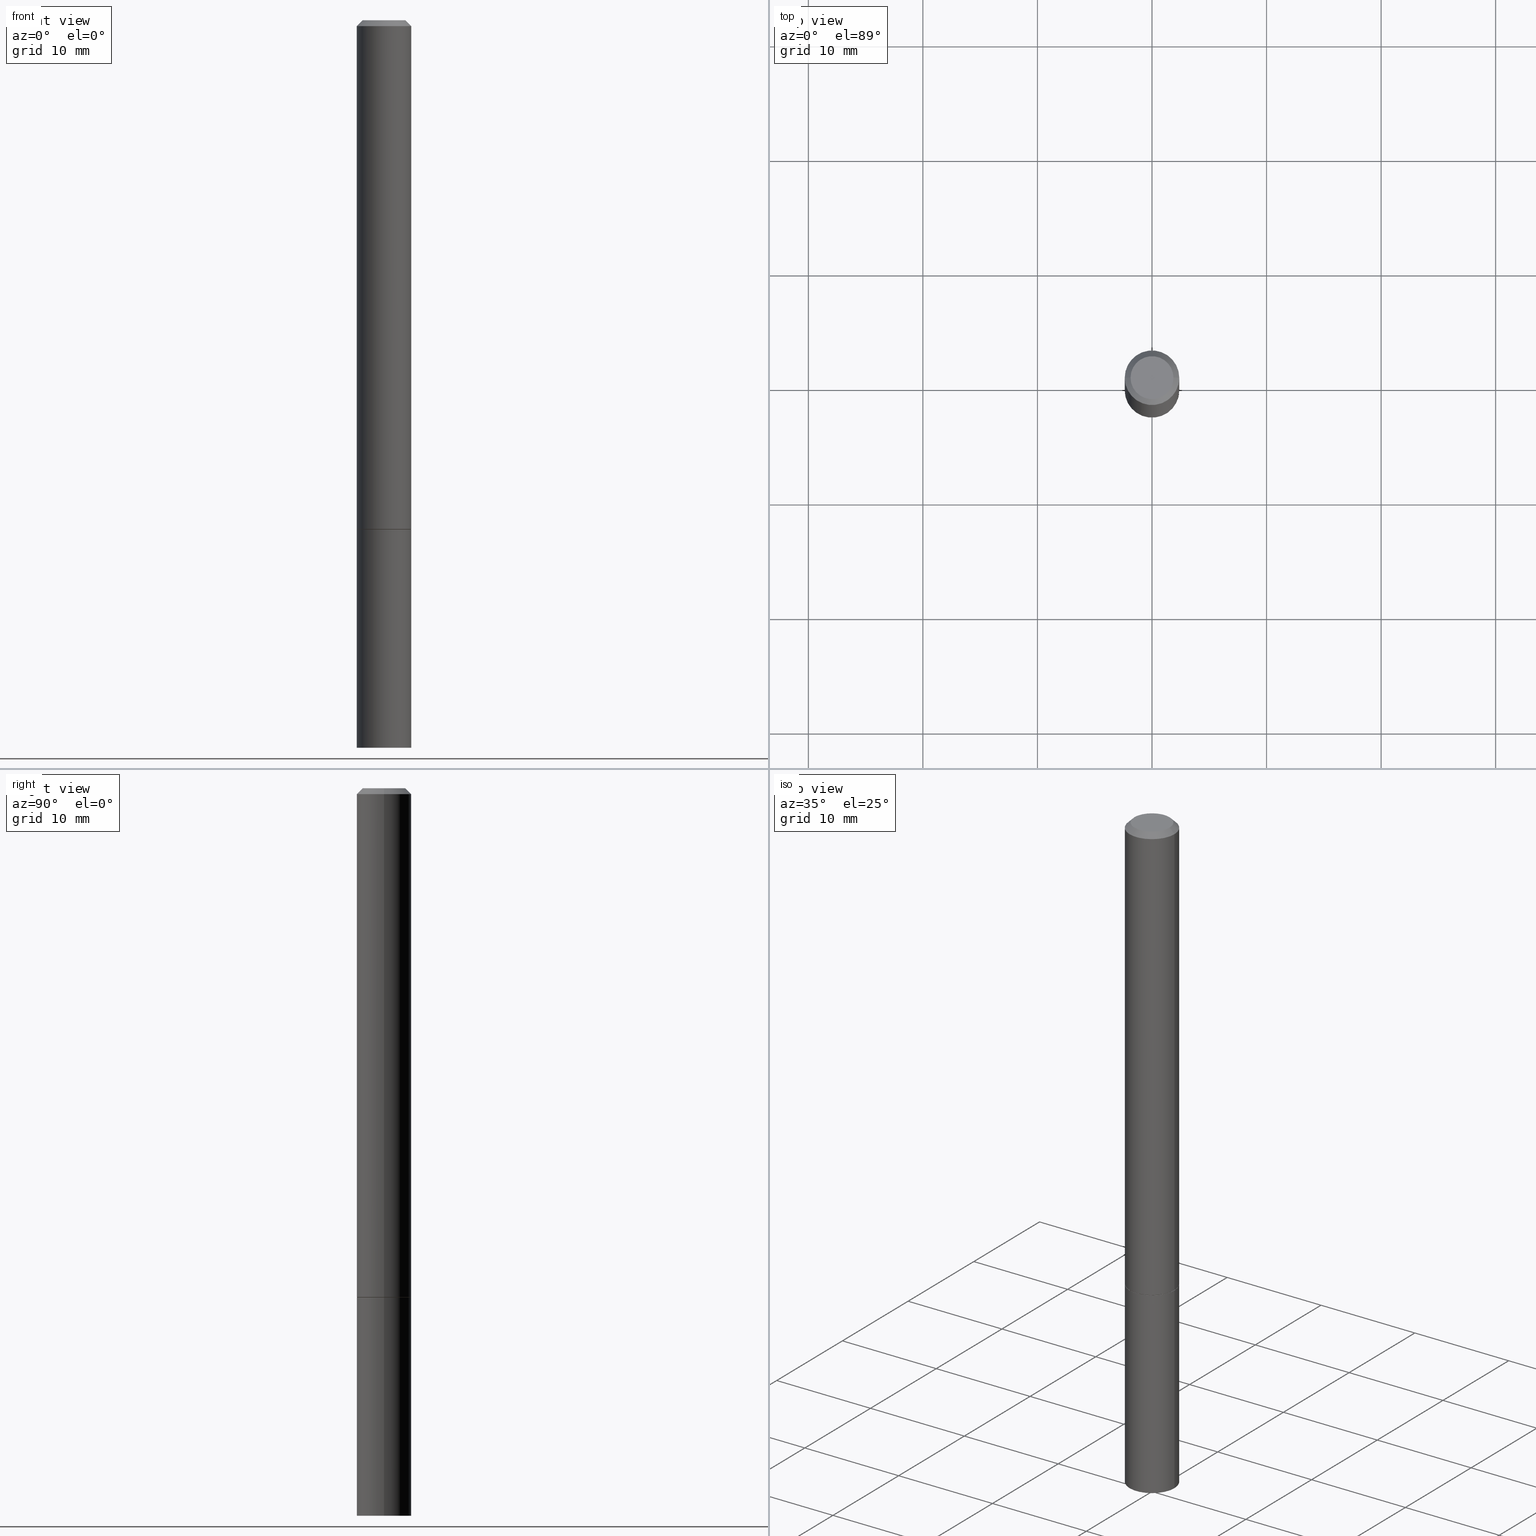
[diagram: canonical four-view strip — front | top / right | iso, engineering-drawing reading convention]
A machine part, canonical four-view strip (front | top / right | iso — engineering-drawing reading convention). The complete STEP part file that produces these views, byte-faithful:
ISO-10303-21;
HEADER;
FILE_DESCRIPTION (( 'STEP AP203' ),
    '1' );
FILE_NAME ('31728.STEP',
    '2023-03-21T20:27:09',
    ( '' ),
    ( '' ),
    'SwSTEP 2.0',
    'SolidWorks 2022',
    '' );
FILE_SCHEMA (( 'CONFIG_CONTROL_DESIGN' ));
ENDSEC;

DATA;
#1 = EDGE_LOOP ( 'NONE', ( #213, #388, #95, #124 ) ) ;
#2 = DIRECTION ( 'NONE',  ( 1.000000000000000000, -6.982962677686261189E-15, 0.000000000000000000 ) ) ;
#3 = CALENDAR_DATE ( 2023, 21, 3 ) ;
#4 = DIRECTION ( 'NONE',  ( 1.000000000000000000, -6.982962677686266711E-15, 0.000000000000000000 ) ) ;
#5 = VECTOR ( 'NONE', #46, 39.37007874015748143 ) ;
#6 = LOCAL_TIME ( 16, 27, 9.000000000000000000, #250 ) ;
#7 = DIRECTION ( 'NONE',  ( 1.000000000000000000, -6.982962677686272233E-15, 0.000000000000000000 ) ) ;
#8 = EDGE_CURVE ( 'NONE', #209, #185, #240, .T. ) ;
#9 = DIRECTION ( 'NONE',  ( -2.445468806185136597E-29, 3.491481338843145583E-15, 1.000000000000000000 ) ) ;
#10 = CARTESIAN_POINT ( 'NONE',  ( 6.100804371105012704E-29, -8.712769720525644670E-15, -2.495086770692215516 ) ) ;
#11 = AXIS2_PLACEMENT_3D ( 'NONE', #199, #321, #79 ) ;
#12 = DIRECTION ( 'NONE',  ( 1.000000000000000000, -6.982962677686261189E-15, 0.000000000000000000 ) ) ;
#13 = LINE ( 'NONE', #257, #137 ) ;
#14 = PRODUCT_RELATED_PRODUCT_CATEGORY ( 'detail', '', ( #42 ) ) ;
#15 = DIRECTION ( 'NONE',  ( 1.000000000000000000, -6.982962677686265922E-15, 4.876176775795935793E-29 ) ) ;
#16 = DIRECTION ( 'NONE',  ( 0.9986295347545742773, -7.033825938272001856E-15, -0.05233595624293820026 ) ) ;
#17 = AXIS2_PLACEMENT_3D ( 'NONE', #337, #306, #37 ) ;
#18 = EDGE_CURVE ( 'NONE', #21, #268, #172, .T. ) ;
#19 = CARTESIAN_POINT ( 'NONE',  ( 0.000000000000000000, 0.000000000000000000, 0.000000000000000000 ) ) ;
#20 = CARTESIAN_POINT ( 'NONE',  ( 0.000000000000000000, 0.000000000000000000, 0.000000000000000000 ) ) ;
#21 = VERTEX_POINT ( 'NONE', #247 ) ;
#22 = DIRECTION ( 'NONE',  ( 2.445468806185136597E-29, -3.491481338843145583E-15, -1.000000000000000000 ) ) ;
#23 = VECTOR ( 'NONE', #262, 39.37007874015748143 ) ;
#24 = EDGE_LOOP ( 'NONE', ( #58, #183 ) ) ;
#25 = APPROVAL_STATUS ( 'not_yet_approved' ) ;
#26 = ADVANCED_FACE ( 'NONE', ( #335 ), #375, .F. ) ;
#27 = ORIENTED_EDGE ( 'NONE', *, *, #230, .F. ) ;
#28 = CC_DESIGN_DATE_AND_TIME_ASSIGNMENT ( #57, #68, ( #355 ) ) ;
#29 = DIRECTION ( 'NONE',  ( -0.9986295347545742773, 6.790662755453662155E-15, -0.05233595624293820026 ) ) ;
#30 = ORIENTED_EDGE ( 'NONE', *, *, #311, .F. ) ;
#31 = VERTEX_POINT ( 'NONE', #155 ) ;
#32 = CIRCLE ( 'NONE', #226, 0.09274999999999999911 ) ;
#33 = ORIENTED_EDGE ( 'NONE', *, *, #372, .F. ) ;
#34 = ADVANCED_BREP_SHAPE_REPRESENTATION ( '31728', ( #368, #243, #320 ), #281 ) ;
#35 = APPROVAL_STATUS ( 'not_yet_approved' ) ;
#36 = DIRECTION ( 'NONE',  ( -1.000000000000000000, 6.982962677686266711E-15, 0.000000000000000000 ) ) ;
#37 = DIRECTION ( 'NONE',  ( 1.000000000000000000, -6.982962677686265133E-15, 4.876176775795935793E-29 ) ) ;
#38 = CC_DESIGN_PERSON_AND_ORGANIZATION_ASSIGNMENT ( #307, #129, ( #314 ) ) ;
#39 = CIRCLE ( 'NONE', #70, 0.09375000000000001388 ) ;
#40 = DIRECTION ( 'NONE',  ( -2.445468806185136597E-29, 3.491481338843145583E-15, 1.000000000000000000 ) ) ;
#41 = DIRECTION ( 'NONE',  ( -2.445468806185136597E-29, 3.491481338843145583E-15, 1.000000000000000000 ) ) ;
#42 = PRODUCT ( '31728', '31728', '', ( #179 ) ) ;
#43 = CARTESIAN_POINT ( 'NONE',  ( -0.09374999999999979183, 5.848231242562231212E-16, -0.02000000000000002123 ) ) ;
#44 = LINE ( 'NONE', #171, #80 ) ;
#45 = EDGE_CURVE ( 'NONE', #390, #141, #133, .T. ) ;
#46 = DIRECTION ( 'NONE',  ( -2.445468806185136877E-29, 3.491481338843145188E-15, 1.000000000000000000 ) ) ;
#47 = LINE ( 'NONE', #381, #5 ) ;
#48 = AXIS2_PLACEMENT_3D ( 'NONE', #162, #157, #4 ) ;
#49 = CARTESIAN_POINT ( 'NONE',  ( -0.09274999999999999911, -5.451063955558012544E-15, -1.750000000000000222 ) ) ;
#50 = APPROVAL_ROLE ( '' ) ;
#51 = EDGE_LOOP ( 'NONE', ( #332, #270, #366, #147 ) ) ;
#52 = ORIENTED_EDGE ( 'NONE', *, *, #344, .T. ) ;
#53 = VECTOR ( 'NONE', #202, 39.37007874015748143 ) ;
#54 = EDGE_CURVE ( 'NONE', #141, #390, #113, .T. ) ;
#55 = ORIENTED_EDGE ( 'NONE', *, *, #163, .F. ) ;
#56 = LOCAL_TIME ( 16, 27, 9.000000000000000000, #309 ) ;
#57 = DATE_AND_TIME ( #331, #231 ) ;
#58 = ORIENTED_EDGE ( 'NONE', *, *, #163, .T. ) ;
#59 = LINE ( 'NONE', #91, #23 ) ;
#60 = ORIENTED_EDGE ( 'NONE', *, *, #18, .F. ) ;
#61 = PERSON_AND_ORGANIZATION_ROLE ( 'classification_officer' ) ;
#62 = CARTESIAN_POINT ( 'NONE',  ( 4.279570410823989044E-29, -6.110092342975505460E-15, -1.750000000000000222 ) ) ;
#63 = CIRCLE ( 'NONE', #280, 0.07374999999999982958 ) ;
#64 = PERSON_AND_ORGANIZATION ( #184, #304 ) ;
#65 = DIRECTION ( 'NONE',  ( -2.445468806185136597E-29, 3.491481338843145583E-15, 1.000000000000000000 ) ) ;
#66 = PERSON_AND_ORGANIZATION_ROLE ( 'creator' ) ;
#67 = ORIENTED_EDGE ( 'NONE', *, *, #45, .T. ) ;
#68 = DATE_TIME_ROLE ( 'creation_date' ) ;
#69 = DIRECTION ( 'NONE',  ( 1.000000000000000000, -6.982962677686266711E-15, 4.876176775795935793E-29 ) ) ;
#70 = AXIS2_PLACEMENT_3D ( 'NONE', #271, #188, #7 ) ;
#71 = AXIS2_PLACEMENT_3D ( 'NONE', #308, #65, #274 ) ;
#72 = CARTESIAN_POINT ( 'NONE',  ( -0.09375000000000001388, -6.753264030266591277E-15, -1.750000000000000222 ) ) ;
#73 = CARTESIAN_POINT ( 'NONE',  ( 5.149934974793609077E-16, 0.07374999999999982958, -2.574967487396813906E-16 ) ) ;
#74 = LINE ( 'NONE', #49, #122 ) ;
#75 = VECTOR ( 'NONE', #29, 39.37007874015748854 ) ;
#76 = CARTESIAN_POINT ( 'NONE',  ( -0.09274999999999999911, -5.445765501209790142E-15, -1.750000000000000222 ) ) ;
#77 = DIRECTION ( 'NONE',  ( 0.7071067811865464625, -7.319954787623252890E-15, -0.7071067811865486830 ) ) ;
#78 = CC_DESIGN_PERSON_AND_ORGANIZATION_ASSIGNMENT ( #151, #296, ( #42 ) ) ;
#79 = DIRECTION ( 'NONE',  ( 1.000000000000000000, -6.982962677686261189E-15, 0.000000000000000000 ) ) ;
#80 = VECTOR ( 'NONE', #16, 39.37007874015748854 ) ;
#81 = COORDINATED_UNIVERSAL_TIME_OFFSET ( 5, 0, .BEHIND. ) ;
#82 = LINE ( 'NONE', #182, #75 ) ;
#83 = EDGE_LOOP ( 'NONE', ( #104, #272, #244, #363 ) ) ;
#84 = APPROVAL ( #370, 'UNSPECIFIED' ) ;
#85 = ORIENTED_EDGE ( 'NONE', *, *, #317, .F. ) ;
#86 = ADVANCED_FACE ( 'NONE', ( #343 ), #369, .T. ) ;
#87 = FACE_OUTER_BOUND ( 'NONE', #181, .T. ) ;
#88 = AXIS2_PLACEMENT_3D ( 'NONE', #276, #40, #69 ) ;
#89 = ORIENTED_EDGE ( 'NONE', *, *, #259, .F. ) ;
#90 = LOCAL_TIME ( 16, 27, 9.000000000000000000, #154 ) ;
#91 = CARTESIAN_POINT ( 'NONE',  ( -0.09374999999999979183, 5.848231242562231212E-16, -0.02000000000000002123 ) ) ;
#92 = ORIENTED_EDGE ( 'NONE', *, *, #230, .T. ) ;
#93 = ADVANCED_FACE ( 'NONE', ( #165 ), #325, .T. ) ;
#94 = APPROVAL_DATE_TIME ( #219, #84 ) ;
#95 = ORIENTED_EDGE ( 'NONE', *, *, #45, .F. ) ;
#96 = DIRECTION ( 'NONE',  ( -2.445468806185136597E-29, 3.491481338843145583E-15, 1.000000000000000000 ) ) ;
#97 = CIRCLE ( 'NONE', #11, 0.09375000000000001388 ) ;
#98 = CARTESIAN_POINT ( 'NONE',  ( 6.113672015462842613E-29, -8.728703347107864943E-15, -2.500000000000000000 ) ) ;
#99 = EDGE_CURVE ( 'NONE', #185, #209, #264, .T. ) ;
#100 = CARTESIAN_POINT ( 'NONE',  ( 0.07374999999999982958, -6.094815207017959226E-16, 3.931526600461596647E-30 ) ) ;
#101 = DIRECTION ( 'NONE',  ( -2.445468806185136597E-29, 3.491481338843145583E-15, 1.000000000000000000 ) ) ;
#102 = AXIS2_PLACEMENT_3D ( 'NONE', #98, #9, #130 ) ;
#103 = APPROVAL_PERSON_ORGANIZATION ( #205, #293, #50 ) ;
#104 = ORIENTED_EDGE ( 'NONE', *, *, #200, .F. ) ;
#105 = CC_DESIGN_PERSON_AND_ORGANIZATION_ASSIGNMENT ( #164, #61, ( #144 ) ) ;
#106 = CARTESIAN_POINT ( 'NONE',  ( -0.09374999999999984734, -8.074050596074776650E-15, -2.500000000000000000 ) ) ;
#107 = CARTESIAN_POINT ( 'NONE',  ( 0.09375000000000001388, -6.761253612669749168E-15, -1.749000000000000110 ) ) ;
#108 = AXIS2_PLACEMENT_3D ( 'NONE', #260, #111, #351 ) ;
#109 = CC_DESIGN_APPROVAL ( #84, ( #314 ) ) ;
#110 = CARTESIAN_POINT ( 'NONE',  ( 0.09375000000000001388, -6.546527510330875041E-16, 4.571415727308690506E-30 ) ) ;
#111 = DIRECTION ( 'NONE',  ( -2.445468806185136597E-29, 3.491481338843145583E-15, 1.000000000000000000 ) ) ;
#112 = DIRECTION ( 'NONE',  ( -1.000000000000000000, 6.982962677686266711E-15, 0.000000000000000000 ) ) ;
#113 = CIRCLE ( 'NONE', #210, 0.09375000000000001388 ) ;
#114 = AXIS2_PLACEMENT_3D ( 'NONE', #290, #22, #112 ) ;
#115 = ORIENTED_EDGE ( 'NONE', *, *, #158, .F. ) ;
#116 = EDGE_CURVE ( 'NONE', #268, #21, #39, .T. ) ;
#117 = FACE_OUTER_BOUND ( 'NONE', #1, .T. ) ;
#118 = EDGE_LOOP ( 'NONE', ( #120, #245, #301 ) ) ;
#119 = PERSON_AND_ORGANIZATION ( #184, #304 ) ;
#120 = ORIENTED_EDGE ( 'NONE', *, *, #382, .F. ) ;
#121 = CALENDAR_DATE ( 2023, 21, 3 ) ;
#122 = VECTOR ( 'NONE', #347, 39.37007874015748854 ) ;
#123 = CC_DESIGN_DATE_AND_TIME_ASSIGNMENT ( #193, #161, ( #144 ) ) ;
#124 = ORIENTED_EDGE ( 'NONE', *, *, #344, .F. ) ;
#125 = CARTESIAN_POINT ( 'NONE',  ( 1.023799563225607519E-27, -1.461714441287113679E-13, -41.86516551084969961 ) ) ;
#126 = ORIENTED_EDGE ( 'NONE', *, *, #158, .T. ) ;
#127 = APPROVAL_ROLE ( '' ) ;
#128 = CARTESIAN_POINT ( 'NONE',  ( -0.09375000000000001388, 6.661338147750940229E-16, -4.611501647113973995E-30 ) ) ;
#129 = PERSON_AND_ORGANIZATION_ROLE ( 'design_supplier' ) ;
#130 = DIRECTION ( 'NONE',  ( 1.000000000000000000, -6.982962677686272233E-15, 0.000000000000000000 ) ) ;
#131 = DIRECTION ( 'NONE',  ( -2.445468806185136877E-29, 3.491481338843145188E-15, 1.000000000000000000 ) ) ;
#132 = APPROVAL ( #35, 'UNSPECIFIED' ) ;
#133 = CIRCLE ( 'NONE', #330, 0.09375000000000001388 ) ;
#134 = DIRECTION ( 'NONE',  ( 2.445468806185136597E-29, -3.491481338843145583E-15, -1.000000000000000000 ) ) ;
#135 = CARTESIAN_POINT ( 'NONE',  ( -0.09374999999999988898, 6.661338147750931354E-16, -4.611501647113968390E-30 ) ) ;
#136 = CARTESIAN_POINT ( 'NONE',  ( 0.09374999999999979183, -7.130013140679426072E-16, -0.02000000000000002123 ) ) ;
#137 = VECTOR ( 'NONE', #77, 39.37007874015748143 ) ;
#138 = DIRECTION ( 'NONE',  ( -2.445468806185136877E-29, 3.491481338843145188E-15, 1.000000000000000000 ) ) ;
#139 = LINE ( 'NONE', #318, #254 ) ;
#140 = DIRECTION ( 'NONE',  ( 1.000000000000000000, -6.982962677686265133E-15, 4.876176775795935793E-29 ) ) ;
#141 = VERTEX_POINT ( 'NONE', #72 ) ;
#142 = CIRCLE ( 'NONE', #336, 0.09375000000000001388 ) ;
#143 = CARTESIAN_POINT ( 'NONE',  ( 0.000000000000000000, 0.000000000000000000, 0.000000000000000000 ) ) ;
#144 = SECURITY_CLASSIFICATION ( '', '', #338 ) ;
#145 = EDGE_LOOP ( 'NONE', ( #115, #294 ) ) ;
#146 = COORDINATED_UNIVERSAL_TIME_OFFSET ( 5, 0, .BEHIND. ) ;
#147 = ORIENTED_EDGE ( 'NONE', *, *, #295, .F. ) ;
#148 = ADVANCED_FACE ( 'NONE', ( #316 ), #342, .F. ) ;
#149 = EDGE_LOOP ( 'NONE', ( #297, #92, #358, #33 ) ) ;
#150 = EDGE_CURVE ( 'NONE', #268, #141, #194, .T. ) ;
#151 = PERSON_AND_ORGANIZATION ( #184, #304 ) ;
#152 = AXIS2_PLACEMENT_3D ( 'NONE', #218, #101, #159 ) ;
#153 = VERTEX_POINT ( 'NONE', #100 ) ;
#154 = COORDINATED_UNIVERSAL_TIME_OFFSET ( 5, 0, .BEHIND. ) ;
#155 = CARTESIAN_POINT ( 'NONE',  ( 0.09274999999999999911, -6.757762131330906950E-15, -1.750000000000000222 ) ) ;
#156 = APPROVAL_ROLE ( '' ) ;
#157 = DIRECTION ( 'NONE',  ( -2.445468806185136597E-29, 3.491481338843145583E-15, 1.000000000000000000 ) ) ;
#158 = EDGE_CURVE ( 'NONE', #31, #263, #287, .T. ) ;
#159 = DIRECTION ( 'NONE',  ( 1.000000000000000000, -6.982962677686273021E-15, 0.000000000000000000 ) ) ;
#160 = CONICAL_SURFACE ( 'NONE', #286, 0.09374999999999979183, 0.7853981633974467247 ) ;
#161 = DATE_TIME_ROLE ( 'classification_date' ) ;
#162 = CARTESIAN_POINT ( 'NONE',  ( 4.890937612370278413E-31, -6.982962677686297772E-17, -0.02000000000000002123 ) ) ;
#163 = EDGE_CURVE ( 'NONE', #211, #153, #273, .T. ) ;
#164 = PERSON_AND_ORGANIZATION ( #184, #304 ) ;
#165 = FACE_OUTER_BOUND ( 'NONE', #242, .T. ) ;
#166 = DIRECTION ( 'NONE',  ( -2.445468806185136597E-29, 3.491481338843145583E-15, 1.000000000000000000 ) ) ;
#167 = VECTOR ( 'NONE', #138, 39.37007874015748143 ) ;
#168 = DIRECTION ( 'NONE',  ( -2.445468806185136597E-29, 3.491481338843145583E-15, 1.000000000000000000 ) ) ;
#169 = FACE_OUTER_BOUND ( 'NONE', #24, .T. ) ;
#170 = EDGE_CURVE ( 'NONE', #263, #31, #32, .T. ) ;
#171 = CARTESIAN_POINT ( 'NONE',  ( 1.220821859429496575E-18, -8.711548898666276345E-15, -2.495086770692215516 ) ) ;
#172 = CIRCLE ( 'NONE', #102, 0.09375000000000001388 ) ;
#173 = CYLINDRICAL_SURFACE ( 'NONE', #379, 0.09375000000000001388 ) ;
#174 =( NAMED_UNIT ( * ) SI_UNIT ( $, .STERADIAN. ) SOLID_ANGLE_UNIT ( ) );
#175 = ORIENTED_EDGE ( 'NONE', *, *, #372, .T. ) ;
#176 = CARTESIAN_POINT ( 'NONE',  ( 0.09375000000000001388, -6.764745094008592175E-15, -1.750000000000000222 ) ) ;
#177 = VERTEX_POINT ( 'NONE', #10 ) ;
#178 = AXIS2_PLACEMENT_3D ( 'NONE', #349, #376, #229 ) ;
#179 = MECHANICAL_CONTEXT ( 'NONE', #374, 'mechanical' ) ;
#180 = CC_DESIGN_APPROVAL ( #293, ( #355 ) ) ;
#181 = EDGE_LOOP ( 'NONE', ( #27, #55, #175, #253 ) ) ;
#182 = CARTESIAN_POINT ( 'NONE',  ( -1.220821859307463684E-18, -8.711548898666276345E-15, -2.495086770692215516 ) ) ;
#183 = ORIENTED_EDGE ( 'NONE', *, *, #339, .T. ) ;
#184 = PERSON ( 'UNSPECIFIED', 'UNSPECIFIED', 'UNSPECIFIED', ('UNSPECIFIED'), ('UNSPECIFIED'), ('UNSPECIFIED') ) ;
#185 = VERTEX_POINT ( 'NONE', #43 ) ;
#186 = DIRECTION ( 'NONE',  ( 1.000000000000000000, -6.982962677686261189E-15, 0.000000000000000000 ) ) ;
#187 = CALENDAR_DATE ( 2023, 21, 3 ) ;
#188 = DIRECTION ( 'NONE',  ( -2.445468806185136597E-29, 3.491481338843145583E-15, 1.000000000000000000 ) ) ;
#189 = ORIENTED_EDGE ( 'NONE', *, *, #150, .F. ) ;
#190 = CARTESIAN_POINT ( 'NONE',  ( 4.279570410823989044E-29, -6.110092342975505460E-15, -1.750000000000000222 ) ) ;
#191 = CONICAL_SURFACE ( 'NONE', #114, 0.09374999999999979183, 0.7853981633974467247 ) ;
#192 = CC_DESIGN_PERSON_AND_ORGANIZATION_ASSIGNMENT ( #119, #359, ( #355 ) ) ;
#193 = DATE_AND_TIME ( #187, #56 ) ;
#194 = LINE ( 'NONE', #128, #373 ) ;
#195 = DIRECTION ( 'NONE',  ( -1.000000000000000000, 6.982962677686265922E-15, -4.876176775795935793E-29 ) ) ;
#196 = CARTESIAN_POINT ( 'NONE',  ( 4.279570410823989044E-29, -6.110092342975505460E-15, -1.750000000000000222 ) ) ;
#197 = AXIS2_PLACEMENT_3D ( 'NONE', #241, #352, #140 ) ;
#198 = CC_DESIGN_APPROVAL ( #132, ( #144 ) ) ;
#199 = CARTESIAN_POINT ( 'NONE',  ( 4.277124942017804562E-29, -6.106600861636661664E-15, -1.749000000000000110 ) ) ;
#200 = EDGE_CURVE ( 'NONE', #384, #185, #322, .T. ) ;
#201 = PLANE ( 'NONE',  #236 ) ;
#202 = DIRECTION ( 'NONE',  ( -2.445468806185136877E-29, 3.491481338843145188E-15, 1.000000000000000000 ) ) ;
#203 = AXIS2_PLACEMENT_3D ( 'NONE', #315, #222, #341 ) ;
#204 = CC_DESIGN_SECURITY_CLASSIFICATION ( #144, ( #314 ) ) ;
#205 = PERSON_AND_ORGANIZATION ( #184, #304 ) ;
#206 =( LENGTH_UNIT ( ) NAMED_UNIT ( * ) SI_UNIT ( $, .METRE. ) );
#207 = EDGE_LOOP ( 'NONE', ( #189, #334, #52, #360 ) ) ;
#208 = APPLICATION_PROTOCOL_DEFINITION ( 'international standard', 'config_control_design', 1994, #374 ) ;
#209 = VERTEX_POINT ( 'NONE', #136 ) ;
#210 = AXIS2_PLACEMENT_3D ( 'NONE', #310, #340, #2 ) ;
#211 = VERTEX_POINT ( 'NONE', #380 ) ;
#212 = APPLICATION_PROTOCOL_DEFINITION ( 'international standard', 'config_control_design', 1994, #252 ) ;
#213 = ORIENTED_EDGE ( 'NONE', *, *, #18, .T. ) ;
#214 = APPROVAL_DATE_TIME ( #224, #132 ) ;
#215 = VERTEX_POINT ( 'NONE', #107 ) ;
#216 = EDGE_CURVE ( 'NONE', #31, #215, #139, .T. ) ;
#217 = CONICAL_SURFACE ( 'NONE', #108, 0.09274999999999999911, 0.7853981633974141952 ) ;
#218 = CARTESIAN_POINT ( 'NONE',  ( 4.279570410823989044E-29, -6.110092342975505460E-15, -1.750000000000000222 ) ) ;
#219 = DATE_AND_TIME ( #3, #90 ) ;
#220 = DIRECTION ( 'NONE',  ( 2.438088387897960049E-29, -3.491481338843145188E-15, -1.000000000000000000 ) ) ;
#221 = PERSON_AND_ORGANIZATION ( #184, #304 ) ;
#222 = DIRECTION ( 'NONE',  ( -2.445468806185136597E-29, 3.491481338843145583E-15, 1.000000000000000000 ) ) ;
#223 = ADVANCED_FACE ( 'NONE', ( #289 ), #313, .F. ) ;
#224 = DATE_AND_TIME ( #248, #6 ) ;
#225 = DIRECTION ( 'NONE',  ( 2.445468806185136597E-29, -3.491481338843145583E-15, -1.000000000000000000 ) ) ;
#226 = AXIS2_PLACEMENT_3D ( 'NONE', #190, #41, #278 ) ;
#227 = FACE_OUTER_BOUND ( 'NONE', #207, .T. ) ;
#228 = DIRECTION ( 'NONE',  ( -1.000000000000000000, 6.982962677686266711E-15, 0.000000000000000000 ) ) ;
#229 = DIRECTION ( 'NONE',  ( -1.000000000000000000, 6.982962677686266711E-15, 0.000000000000000000 ) ) ;
#230 = EDGE_CURVE ( 'NONE', #153, #209, #13, .T. ) ;
#231 = LOCAL_TIME ( 16, 27, 9.000000000000000000, #81 ) ;
#232 = FACE_OUTER_BOUND ( 'NONE', #249, .T. ) ;
#233 = CARTESIAN_POINT ( 'NONE',  ( 4.277124942017804562E-29, -6.106600861636661664E-15, -1.749000000000000110 ) ) ;
#234 = ADVANCED_FACE ( 'NONE', ( #261 ), #160, .T. ) ;
#235 = APPROVAL_DATE_TIME ( #266, #293 ) ;
#236 = AXIS2_PLACEMENT_3D ( 'NONE', #196, #319, #15 ) ;
#237 = CYLINDRICAL_SURFACE ( 'NONE', #197, 0.09374999999999988898 ) ;
#238 = DIRECTION ( 'NONE',  ( 0.000000000000000000, 0.000000000000000000, 1.000000000000000000 ) ) ;
#239 = ORIENTED_EDGE ( 'NONE', *, *, #382, .T. ) ;
#240 = CIRCLE ( 'NONE', #48, 0.09374999999999979183 ) ;
#241 = CARTESIAN_POINT ( 'NONE',  ( 0.000000000000000000, 0.000000000000000000, 0.000000000000000000 ) ) ;
#242 = EDGE_LOOP ( 'NONE', ( #126, #356, #329, #251 ) ) ;
#243 = MANIFOLD_SOLID_BREP ( 'Body-Move/Copy2[2]', #269 ) ;
#244 = ORIENTED_EDGE ( 'NONE', *, *, #295, .T. ) ;
#245 = ORIENTED_EDGE ( 'NONE', *, *, #317, .T. ) ;
#246 = AXIS2_PLACEMENT_3D ( 'NONE', #20, #362, #298 ) ;
#247 = CARTESIAN_POINT ( 'NONE',  ( 0.09374999999999984734, -9.371875034398942871E-15, -2.500000000000000000 ) ) ;
#248 = CALENDAR_DATE ( 2023, 21, 3 ) ;
#249 = EDGE_LOOP ( 'NONE', ( #89, #387, #328, #30 ) ) ;
#250 = COORDINATED_UNIVERSAL_TIME_OFFSET ( 5, 0, .BEHIND. ) ;
#251 = ORIENTED_EDGE ( 'NONE', *, *, #216, .F. ) ;
#252 = APPLICATION_CONTEXT ( 'configuration controlled 3d designs of mechanical parts and assemblies' ) ;
#253 = ORIENTED_EDGE ( 'NONE', *, *, #99, .T. ) ;
#254 = VECTOR ( 'NONE', #285, 39.37007874015748854 ) ;
#255 = PRODUCT_DEFINITION_SHAPE ( 'NONE', 'NONE',  #355 ) ;
#256 = FACE_OUTER_BOUND ( 'NONE', #145, .T. ) ;
#257 = CARTESIAN_POINT ( 'NONE',  ( 0.09374999999999979183, -7.130013140679426072E-16, -0.02000000000000002123 ) ) ;
#258 = CARTESIAN_POINT ( 'NONE',  ( 0.000000000000000000, 0.000000000000000000, 0.000000000000000000 ) ) ;
#259 = EDGE_CURVE ( 'NONE', #263, #384, #74, .T. ) ;
#260 = CARTESIAN_POINT ( 'NONE',  ( 4.279570410823989044E-29, -6.110092342975505460E-15, -1.750000000000000222 ) ) ;
#261 = FACE_OUTER_BOUND ( 'NONE', #149, .T. ) ;
#262 = DIRECTION ( 'NONE',  ( -0.7071067811865464625, 2.468850131082245228E-15, -0.7071067811865486830 ) ) ;
#263 = VERTEX_POINT ( 'NONE', #76 ) ;
#264 = CIRCLE ( 'NONE', #71, 0.09374999999999979183 ) ;
#265 = LENGTH_MEASURE_WITH_UNIT ( LENGTH_MEASURE( 0.02539999999999999897 ), #206 );
#266 = DATE_AND_TIME ( #121, #354 ) ;
#267 = EDGE_LOOP ( 'NONE', ( #67, #291 ) ) ;
#268 = VERTEX_POINT ( 'NONE', #106 ) ;
#269 = CLOSED_SHELL ( 'NONE', ( #93, #86, #234, #389, #365, #350, #333, #326 ) ) ;
#270 = ORIENTED_EDGE ( 'NONE', *, *, #200, .T. ) ;
#271 = CARTESIAN_POINT ( 'NONE',  ( 6.113672015462842613E-29, -8.728703347107864943E-15, -2.500000000000000000 ) ) ;
#272 = ORIENTED_EDGE ( 'NONE', *, *, #311, .T. ) ;
#273 = CIRCLE ( 'NONE', #88, 0.07374999999999982958 ) ;
#274 = DIRECTION ( 'NONE',  ( 1.000000000000000000, -6.982962677686266711E-15, 0.000000000000000000 ) ) ;
#275 = CC_DESIGN_PERSON_AND_ORGANIZATION_ASSIGNMENT ( #305, #66, ( #314 ) ) ;
#276 = CARTESIAN_POINT ( 'NONE',  ( 0.000000000000000000, 0.000000000000000000, 0.000000000000000000 ) ) ;
#277 = EDGE_CURVE ( 'NONE', #215, #384, #97, .T. ) ;
#278 = DIRECTION ( 'NONE',  ( 1.000000000000000000, -6.982962677686273021E-15, 0.000000000000000000 ) ) ;
#279 = DIRECTION ( 'NONE',  ( 1.000000000000000000, -6.982962677686265922E-15, 4.876176775795935793E-29 ) ) ;
#280 = AXIS2_PLACEMENT_3D ( 'NONE', #258, #168, #378 ) ;
#281 =( GEOMETRIC_REPRESENTATION_CONTEXT ( 3 ) GLOBAL_UNCERTAINTY_ASSIGNED_CONTEXT ( ( #302 ) ) GLOBAL_UNIT_ASSIGNED_CONTEXT ( ( #300, #327, #174 ) ) REPRESENTATION_CONTEXT ( 'NONE', 'WORKASPACE' ) );
#282 = LINE ( 'NONE', #110, #167 ) ;
#283 = DIMENSIONAL_EXPONENTS ( 1.000000000000000000, 0.000000000000000000, 0.000000000000000000, 0.000000000000000000, 0.000000000000000000, 0.000000000000000000, 0.000000000000000000 ) ;
#284 = DIRECTION ( 'NONE',  ( 2.438088387897960049E-29, -3.491481338843145188E-15, -1.000000000000000000 ) ) ;
#285 = DIRECTION ( 'NONE',  ( 0.7071067811865232589, -2.468850131082003836E-15, 0.7071067811865715536 ) ) ;
#286 = AXIS2_PLACEMENT_3D ( 'NONE', #377, #134, #228 ) ;
#287 = CIRCLE ( 'NONE', #203, 0.09274999999999999911 ) ;
#288 = APPROVAL_PERSON_ORGANIZATION ( #221, #84, #127 ) ;
#289 = FACE_OUTER_BOUND ( 'NONE', #299, .T. ) ;
#290 = CARTESIAN_POINT ( 'NONE',  ( 4.890937612370278413E-31, -6.982962677686297772E-17, -0.02000000000000002123 ) ) ;
#291 = ORIENTED_EDGE ( 'NONE', *, *, #54, .T. ) ;
#292 = DESIGN_CONTEXT ( 'detailed design', #252, 'design' ) ;
#293 = APPROVAL ( #25, 'UNSPECIFIED' ) ;
#294 = ORIENTED_EDGE ( 'NONE', *, *, #170, .F. ) ;
#295 = EDGE_CURVE ( 'NONE', #215, #209, #47, .T. ) ;
#296 = PERSON_AND_ORGANIZATION_ROLE ( 'design_owner' ) ;
#297 = ORIENTED_EDGE ( 'NONE', *, *, #339, .F. ) ;
#298 = DIRECTION ( 'NONE',  ( 1.000000000000000000, -6.982962677686265922E-15, 4.876176775795935793E-29 ) ) ;
#299 = EDGE_LOOP ( 'NONE', ( #85, #239, #60 ) ) ;
#300 =( CONVERSION_BASED_UNIT ( 'INCH', #265 ) LENGTH_UNIT ( ) NAMED_UNIT ( #283 ) );
#301 = ORIENTED_EDGE ( 'NONE', *, *, #116, .F. ) ;
#302 = UNCERTAINTY_MEASURE_WITH_UNIT (LENGTH_MEASURE( 1.000000000000000082E-05 ), #300, 'distance_accuracy_value', 'NONE');
#303 = AXIS2_PLACEMENT_3D ( 'NONE', #73, #284, #195 ) ;
#304 = ORGANIZATION ( 'UNSPECIFIED', 'UNSPECIFIED', '' ) ;
#305 = PERSON_AND_ORGANIZATION ( #184, #304 ) ;
#306 = DIRECTION ( 'NONE',  ( -2.445468806185136597E-29, 3.491481338843145583E-15, 1.000000000000000000 ) ) ;
#307 = PERSON_AND_ORGANIZATION ( #184, #304 ) ;
#308 = CARTESIAN_POINT ( 'NONE',  ( 4.890937612370278413E-31, -6.982962677686297772E-17, -0.02000000000000002123 ) ) ;
#309 = COORDINATED_UNIVERSAL_TIME_OFFSET ( 5, 0, .BEHIND. ) ;
#310 = CARTESIAN_POINT ( 'NONE',  ( 4.279570410823989044E-29, -6.110092342975505460E-15, -1.750000000000000222 ) ) ;
#311 = EDGE_CURVE ( 'NONE', #384, #215, #142, .T. ) ;
#312 = SHAPE_DEFINITION_REPRESENTATION ( #255, #34 ) ;
#313 = CONICAL_SURFACE ( 'NONE', #178, 751.2258538476485228, 1.518436449235072372 ) ;
#314 = PRODUCT_DEFINITION_FORMATION_WITH_SPECIFIED_SOURCE ( 'ANY', '', #42, .NOT_KNOWN. ) ;
#315 = CARTESIAN_POINT ( 'NONE',  ( 4.279570410823989044E-29, -6.110092342975505460E-15, -1.750000000000000222 ) ) ;
#316 = FACE_OUTER_BOUND ( 'NONE', #118, .T. ) ;
#317 = EDGE_CURVE ( 'NONE', #177, #21, #44, .T. ) ;
#318 = CARTESIAN_POINT ( 'NONE',  ( 0.09274999999999999911, -6.757762131330906950E-15, -1.750000000000000222 ) ) ;
#319 = DIRECTION ( 'NONE',  ( -2.438088387897960049E-29, 3.491481338843145188E-15, 1.000000000000000000 ) ) ;
#320 = AXIS2_PLACEMENT_3D ( 'NONE', #143, #238, #357 ) ;
#321 = DIRECTION ( 'NONE',  ( -2.445468806185136597E-29, 3.491481338843145583E-15, 1.000000000000000000 ) ) ;
#322 = LINE ( 'NONE', #135, #53 ) ;
#323 = ADVANCED_FACE ( 'NONE', ( #227 ), #173, .T. ) ;
#324 = FACE_OUTER_BOUND ( 'NONE', #83, .T. ) ;
#325 = CONICAL_SURFACE ( 'NONE', #152, 0.09274999999999999911, 0.7853981633974141952 ) ;
#326 = ADVANCED_FACE ( 'NONE', ( #169 ), #345, .F. ) ;
#327 =( NAMED_UNIT ( * ) PLANE_ANGLE_UNIT ( ) SI_UNIT ( $, .RADIAN. ) );
#328 = ORIENTED_EDGE ( 'NONE', *, *, #216, .T. ) ;
#329 = ORIENTED_EDGE ( 'NONE', *, *, #277, .F. ) ;
#330 = AXIS2_PLACEMENT_3D ( 'NONE', #62, #96, #186 ) ;
#331 = CALENDAR_DATE ( 2023, 21, 3 ) ;
#332 = ORIENTED_EDGE ( 'NONE', *, *, #277, .T. ) ;
#333 = ADVANCED_FACE ( 'NONE', ( #256 ), #201, .F. ) ;
#334 = ORIENTED_EDGE ( 'NONE', *, *, #116, .T. ) ;
#335 = FACE_OUTER_BOUND ( 'NONE', #267, .T. ) ;
#336 = AXIS2_PLACEMENT_3D ( 'NONE', #233, #346, #12 ) ;
#337 = CARTESIAN_POINT ( 'NONE',  ( 0.000000000000000000, 0.000000000000000000, 0.000000000000000000 ) ) ;
#338 = SECURITY_CLASSIFICATION_LEVEL ( 'unclassified' ) ;
#339 = EDGE_CURVE ( 'NONE', #153, #211, #63, .T. ) ;
#340 = DIRECTION ( 'NONE',  ( -2.445468806185136597E-29, 3.491481338843145583E-15, 1.000000000000000000 ) ) ;
#341 = DIRECTION ( 'NONE',  ( 1.000000000000000000, -6.982962677686273021E-15, 0.000000000000000000 ) ) ;
#342 = CONICAL_SURFACE ( 'NONE', #353, 751.2258538476485228, 1.518436449235072372 ) ;
#343 = FACE_OUTER_BOUND ( 'NONE', #51, .T. ) ;
#344 = EDGE_CURVE ( 'NONE', #21, #390, #282, .T. ) ;
#345 = PLANE ( 'NONE',  #303 ) ;
#346 = DIRECTION ( 'NONE',  ( -2.445468806185136597E-29, 3.491481338843145583E-15, 1.000000000000000000 ) ) ;
#347 = DIRECTION ( 'NONE',  ( -0.7071067811865232589, 7.493145998870265808E-15, 0.7071067811865715536 ) ) ;
#348 = CLOSED_SHELL ( 'NONE', ( #367, #148, #223, #323, #26 ) ) ;
#349 = CARTESIAN_POINT ( 'NONE',  ( 1.023799563225607519E-27, -1.461714441287113679E-13, -41.86516551084969961 ) ) ;
#350 = ADVANCED_FACE ( 'NONE', ( #232 ), #217, .T. ) ;
#351 = DIRECTION ( 'NONE',  ( 1.000000000000000000, -6.982962677686273021E-15, 0.000000000000000000 ) ) ;
#352 = DIRECTION ( 'NONE',  ( -2.445468806185136597E-29, 3.491481338843145583E-15, 1.000000000000000000 ) ) ;
#353 = AXIS2_PLACEMENT_3D ( 'NONE', #125, #225, #36 ) ;
#354 = LOCAL_TIME ( 16, 27, 9.000000000000000000, #146 ) ;
#355 = PRODUCT_DEFINITION ( 'UNKNOWN', '', #314, #292 ) ;
#356 = ORIENTED_EDGE ( 'NONE', *, *, #259, .T. ) ;
#357 = DIRECTION ( 'NONE',  ( 1.000000000000000000, 0.000000000000000000, 0.000000000000000000 ) ) ;
#358 = ORIENTED_EDGE ( 'NONE', *, *, #8, .T. ) ;
#359 = PERSON_AND_ORGANIZATION_ROLE ( 'creator' ) ;
#360 = ORIENTED_EDGE ( 'NONE', *, *, #54, .F. ) ;
#361 = AXIS2_PLACEMENT_3D ( 'NONE', #364, #220, #371 ) ;
#362 = DIRECTION ( 'NONE',  ( -2.445468806185136597E-29, 3.491481338843145583E-15, 1.000000000000000000 ) ) ;
#363 = ORIENTED_EDGE ( 'NONE', *, *, #99, .F. ) ;
#364 = CARTESIAN_POINT ( 'NONE',  ( 6.546527510331302998E-16, 0.09374999999999389377, -1.750000000000000444 ) ) ;
#365 = ADVANCED_FACE ( 'NONE', ( #324 ), #237, .T. ) ;
#366 = ORIENTED_EDGE ( 'NONE', *, *, #8, .F. ) ;
#367 = ADVANCED_FACE ( 'NONE', ( #117 ), #386, .T. ) ;
#368 = MANIFOLD_SOLID_BREP ( 'Body-Move/Copy2[1]', #348 ) ;
#369 = CYLINDRICAL_SURFACE ( 'NONE', #17, 0.09374999999999988898 ) ;
#370 = APPROVAL_STATUS ( 'not_yet_approved' ) ;
#371 = DIRECTION ( 'NONE',  ( -1.000000000000000000, 6.982962677686265922E-15, -4.876176775795935793E-29 ) ) ;
#372 = EDGE_CURVE ( 'NONE', #211, #185, #59, .T. ) ;
#373 = VECTOR ( 'NONE', #131, 39.37007874015748143 ) ;
#374 = APPLICATION_CONTEXT ( 'configuration controlled 3d designs of mechanical parts and assemblies' ) ;
#375 = PLANE ( 'NONE',  #361 ) ;
#376 = DIRECTION ( 'NONE',  ( 2.445468806185136597E-29, -3.491481338843145583E-15, -1.000000000000000000 ) ) ;
#377 = CARTESIAN_POINT ( 'NONE',  ( 4.890937612370278413E-31, -6.982962677686297772E-17, -0.02000000000000002123 ) ) ;
#378 = DIRECTION ( 'NONE',  ( 1.000000000000000000, -6.982962677686266711E-15, 4.876176775795935793E-29 ) ) ;
#379 = AXIS2_PLACEMENT_3D ( 'NONE', #19, #166, #279 ) ;
#380 = CARTESIAN_POINT ( 'NONE',  ( -0.07374999999999982958, 5.499083108677920638E-16, -3.723527850031185562E-30 ) ) ;
#381 = CARTESIAN_POINT ( 'NONE',  ( 0.09374999999999988898, -6.546527510330866166E-16, 4.571415727308684201E-30 ) ) ;
#382 = EDGE_CURVE ( 'NONE', #177, #268, #82, .T. ) ;
#383 = CARTESIAN_POINT ( 'NONE',  ( -0.09375000000000001388, -2.422081429431664218E-15, -1.749000000000000110 ) ) ;
#384 = VERTEX_POINT ( 'NONE', #383 ) ;
#385 = APPROVAL_PERSON_ORGANIZATION ( #64, #132, #156 ) ;
#386 = CYLINDRICAL_SURFACE ( 'NONE', #246, 0.09375000000000001388 ) ;
#387 = ORIENTED_EDGE ( 'NONE', *, *, #170, .T. ) ;
#388 = ORIENTED_EDGE ( 'NONE', *, *, #150, .T. ) ;
#389 = ADVANCED_FACE ( 'NONE', ( #87 ), #191, .T. ) ;
#390 = VERTEX_POINT ( 'NONE', #176 ) ;
ENDSEC;
END-ISO-10303-21;
